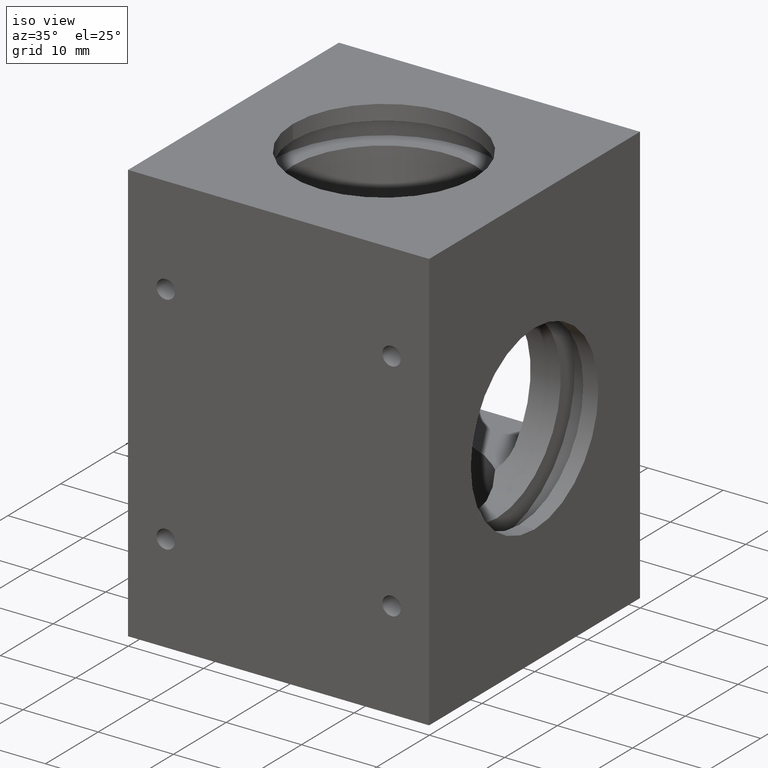
[diagram: clean part render]
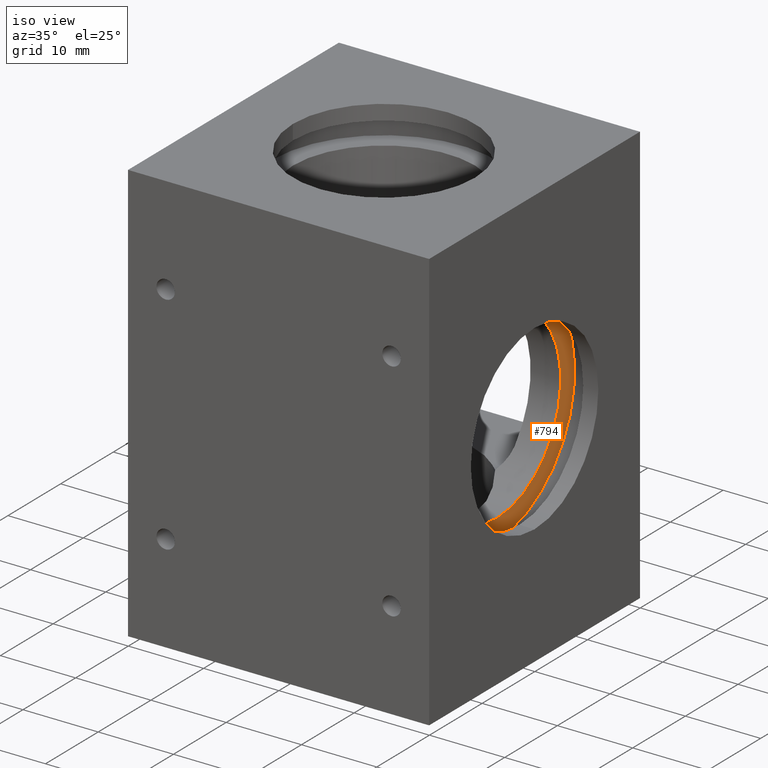
[diagram: same view with one face highlighted and labeled with its STEP entity id]
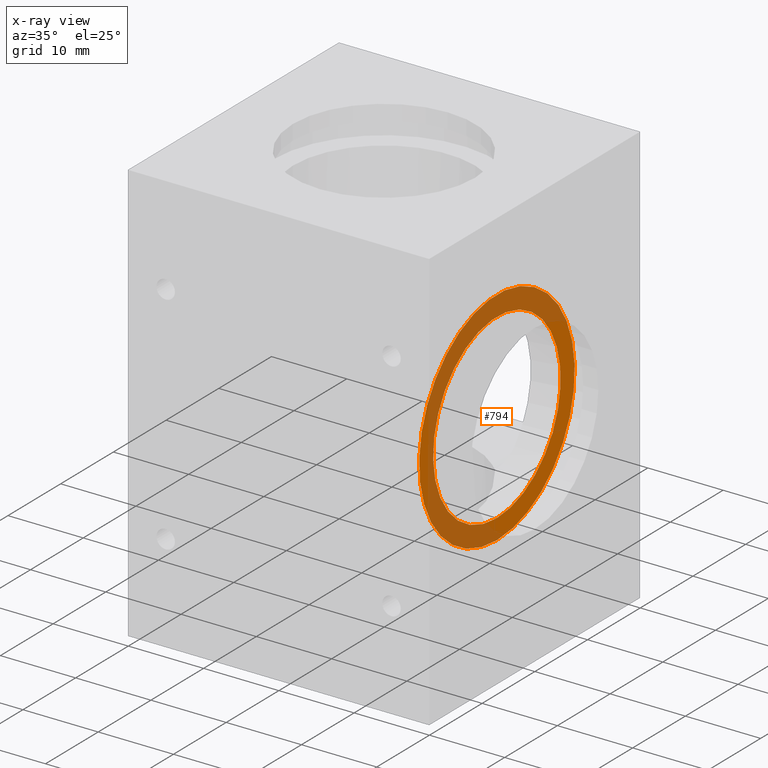
[diagram: x-ray of the same camera — body ghosted, the highlighted face saturated]
A machine part, iso view. The second image highlights one B-rep face of the part: STEP entity #794.
The next image is the same camera in x-ray: the body ghosted, the highlighted face saturated — about 59% of this face is hidden behind the body in this view.
In plain terms, the highlighted planar face has unit normal (1, 0, 0).
Its self-contained STEP definition (entity closure, byte-faithful):
#105=FACE_BOUND('',#262,.T.);
#149=CIRCLE('',#886,14.75);
#151=CIRCLE('',#889,12.1);
#188=FACE_OUTER_BOUND('',#261,.T.);
#261=EDGE_LOOP('',(#627));
#262=EDGE_LOOP('',(#628));
#421=VERTEX_POINT('',#1321);
#423=VERTEX_POINT('',#1326);
#501=EDGE_CURVE('',#421,#421,#149,.T.);
#503=EDGE_CURVE('',#423,#423,#151,.T.);
#627=ORIENTED_EDGE('',*,*,#501,.F.);
#628=ORIENTED_EDGE('',*,*,#503,.F.);
#754=PLANE('',#888);
#794=ADVANCED_FACE('',(#188,#105),#754,.T.);
#886=AXIS2_PLACEMENT_3D('',#1322,#1069,#1070);
#888=AXIS2_PLACEMENT_3D('',#1325,#1073,#1074);
#889=AXIS2_PLACEMENT_3D('',#1327,#1075,#1076);
#1069=DIRECTION('center_axis',(-1.,0.,0.));
#1070=DIRECTION('ref_axis',(0.,0.,1.));
#1073=DIRECTION('center_axis',(1.,0.,0.));
#1074=DIRECTION('ref_axis',(0.,0.,-1.));
#1075=DIRECTION('center_axis',(1.,0.,0.));
#1076=DIRECTION('ref_axis',(0.,0.,1.));
#1321=CARTESIAN_POINT('',(15.,29.95,-14.75));
#1322=CARTESIAN_POINT('Origin',(15.,29.95,0.));
#1325=CARTESIAN_POINT('Origin',(15.,29.95,6.52325219739899E-16));
#1326=CARTESIAN_POINT('',(15.,29.95,-12.1));
#1327=CARTESIAN_POINT('Origin',(15.,29.95,0.));